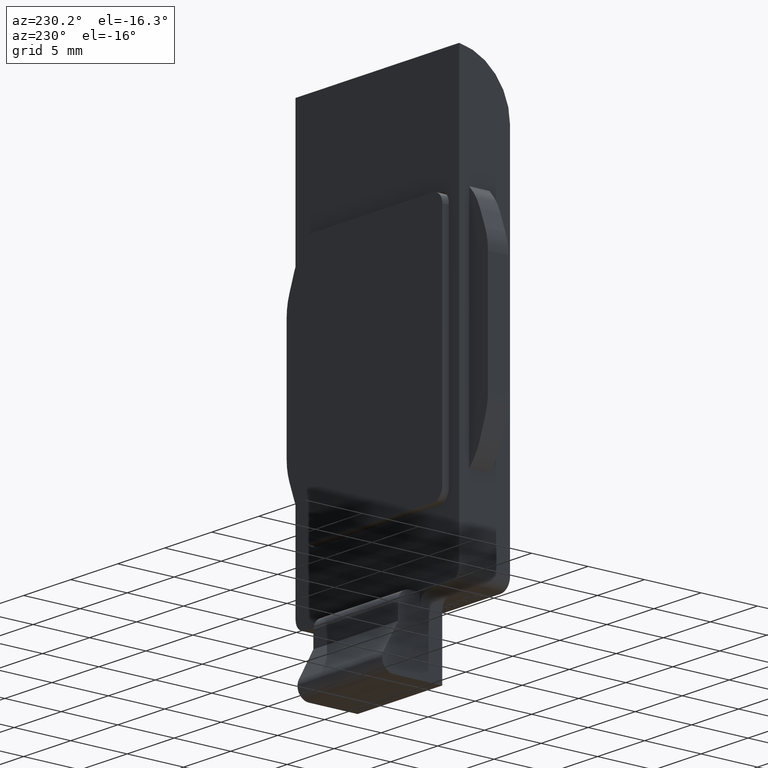
[diagram: clean part render]
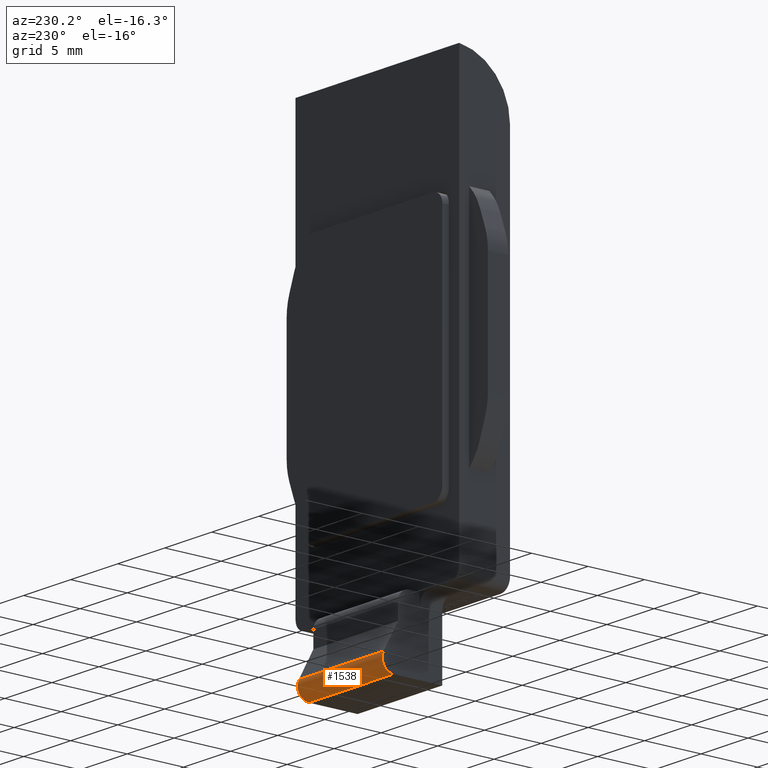
[diagram: same view with one face highlighted and labeled with its STEP entity id]
A machine part, auxiliary view. The second image highlights one B-rep face of the part: STEP entity #1538.
In plain terms, the highlighted cylindrical surface (edge-blend (fillet) strip) has radius 1 mm, axis along (-1, 0, 0).
Its self-contained STEP definition (entity closure, byte-faithful):
#113 = CARTESIAN_POINT ( 'NONE',  ( 4.500000000000000000, 6.831214428259021254, -6.250000000000000000 ) ) ;
#114 = CARTESIAN_POINT ( 'NONE',  ( 8.699999999999999289, 7.710546246380077129, -4.773790430965610732 ) ) ;
#357 = VECTOR ( 'NONE', #12805, 1000.000000000000000 ) ;
#440 = EDGE_LOOP ( 'NONE', ( #16061, #9734, #2164, #3572 ) ) ;
#639 = CIRCLE ( 'NONE', #14621, 1.000000000000000000 ) ;
#1168 = VERTEX_POINT ( 'NONE', #2276 ) ;
#1530 = DIRECTION ( 'NONE',  ( -1.000000000000000000, 1.630007115259559753E-16, -0.000000000000000000 ) ) ;
#1538 = ADVANCED_FACE ( 'NONE', ( #4584 ), #11346, .T. ) ;
#1707 = CIRCLE ( 'NONE', #4926, 1.000000000000000000 ) ;
#2003 = VERTEX_POINT ( 'NONE', #113 ) ;
#2164 = ORIENTED_EDGE ( 'NONE', *, *, #13497, .T. ) ;
#2276 = CARTESIAN_POINT ( 'NONE',  ( -4.500000000000000000, 6.831214428259021254, -6.250000000000000000 ) ) ;
#2820 = DIRECTION ( 'NONE',  ( 0.000000000000000000, 1.000000000000000000, 0.000000000000000000 ) ) ;
#3041 = EDGE_CURVE ( 'NONE', #1168, #2003, #11898, .T. ) ;
#3369 = DIRECTION ( 'NONE',  ( -1.000000000000000000, 0.000000000000000000, 0.000000000000000000 ) ) ;
#3572 = ORIENTED_EDGE ( 'NONE', *, *, #3041, .F. ) ;
#4584 = FACE_OUTER_BOUND ( 'NONE', #440, .T. ) ;
#4926 = AXIS2_PLACEMENT_3D ( 'NONE', #6484, #10281, #8853 ) ;
#6416 = EDGE_CURVE ( 'NONE', #9999, #14954, #11836, .T. ) ;
#6484 = CARTESIAN_POINT ( 'NONE',  ( -4.499999999999999112, 6.831214428259021254, -5.250000000000000000 ) ) ;
#6593 = EDGE_CURVE ( 'NONE', #14954, #1168, #1707, .T. ) ;
#7279 = DIRECTION ( 'NONE',  ( 0.000000000000000000, 0.000000000000000000, 1.000000000000000000 ) ) ;
#7922 = CARTESIAN_POINT ( 'NONE',  ( 4.500000000000000000, 6.831214428259021254, -5.250000000000000000 ) ) ;
#8132 = VECTOR ( 'NONE', #8482, 1000.000000000000000 ) ;
#8482 = DIRECTION ( 'NONE',  ( 1.000000000000000000, -0.000000000000000000, -0.000000000000000000 ) ) ;
#8853 = DIRECTION ( 'NONE',  ( 0.000000000000000000, 1.000000000000000000, 0.000000000000000000 ) ) ;
#9734 = ORIENTED_EDGE ( 'NONE', *, *, #6416, .F. ) ;
#9999 = VERTEX_POINT ( 'NONE', #13233 ) ;
#10281 = DIRECTION ( 'NONE',  ( -1.000000000000000000, 1.630007115259560246E-16, -0.000000000000000000 ) ) ;
#10964 = CARTESIAN_POINT ( 'NONE',  ( 8.699999999999999289, 6.831214428259022142, -6.250000000000000000 ) ) ;
#11346 = CYLINDRICAL_SURFACE ( 'NONE', #12664, 1.000000000000000000 ) ;
#11836 = LINE ( 'NONE', #114, #357 ) ;
#11898 = LINE ( 'NONE', #10964, #8132 ) ;
#12664 = AXIS2_PLACEMENT_3D ( 'NONE', #13572, #3369, #7279 ) ;
#12805 = DIRECTION ( 'NONE',  ( -1.000000000000000000, 0.000000000000000000, 0.000000000000000000 ) ) ;
#13233 = CARTESIAN_POINT ( 'NONE',  ( 4.500000000000000000, 7.710546246380076241, -4.773790430965610732 ) ) ;
#13497 = EDGE_CURVE ( 'NONE', #9999, #2003, #639, .T. ) ;
#13572 = CARTESIAN_POINT ( 'NONE',  ( 8.699999999999999289, 6.831214428259021254, -5.250000000000000000 ) ) ;
#14105 = CARTESIAN_POINT ( 'NONE',  ( -4.499999999999999112, 7.710546246380077129, -4.773790430965610732 ) ) ;
#14621 = AXIS2_PLACEMENT_3D ( 'NONE', #7922, #1530, #2820 ) ;
#14954 = VERTEX_POINT ( 'NONE', #14105 ) ;
#16061 = ORIENTED_EDGE ( 'NONE', *, *, #6593, .F. ) ;